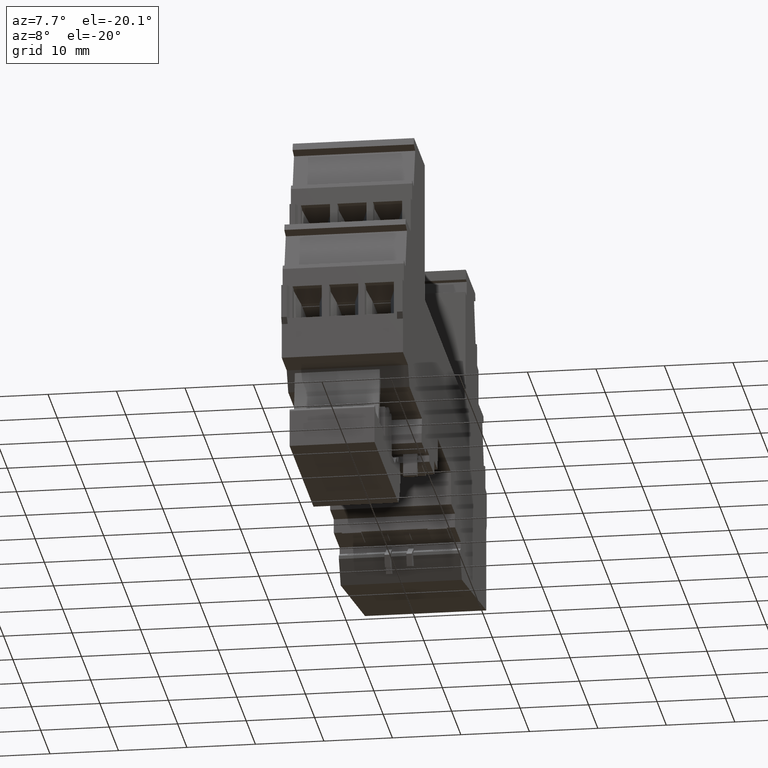
[diagram: clean part render]
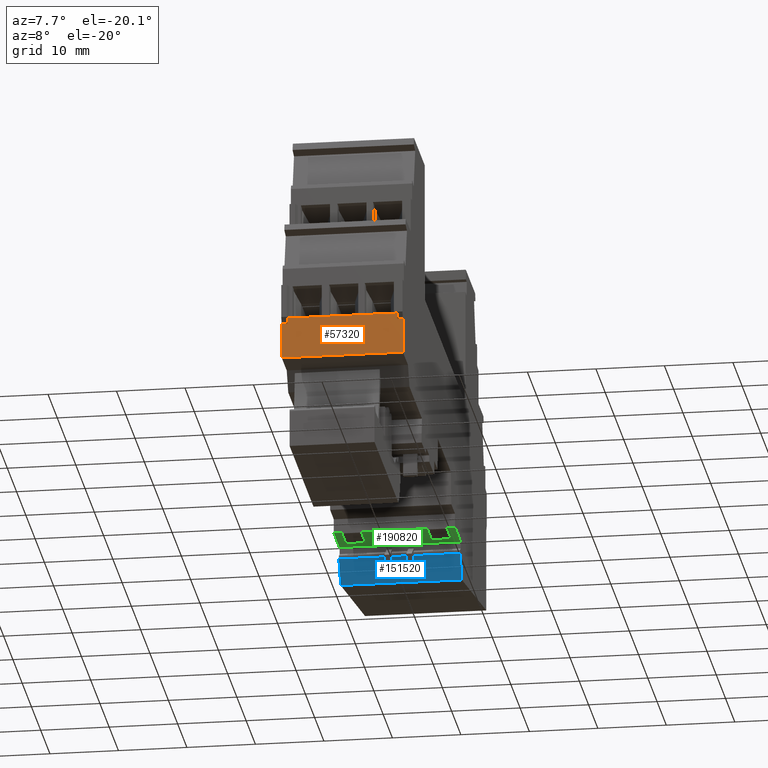
[diagram: same view with three faces highlighted in distinct colors, each labeled with its STEP entity id]
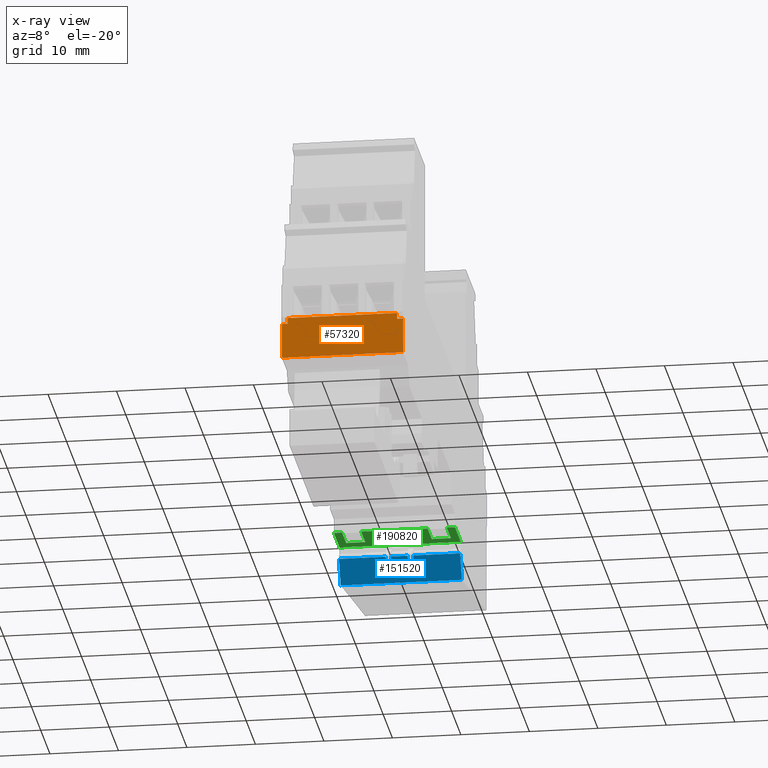
[diagram: x-ray of the same camera — body ghosted, the three highlighted faces saturated]
A machine part, auxiliary view with three faces highlighted in distinct colors.
The next image is the same camera in x-ray (body ghosted, the three faces saturated) — at least one of them is partly hidden behind the body in this view.
Their STEP definitions:

[orange] entity #57320 — the highlighted planar face has unit normal (0, 1, 0).
#4040=CARTESIAN_POINT('',(73.1530202788275,34.5453465791656,
-0.938341445953474));
#4050=VERTEX_POINT('',#4040);
#4080=CARTESIAN_POINT('',(73.1530202788275,44.0424286058733,
-0.938341446370977));
#4090=DIRECTION('',(-2.57771256903652E-26,-1.,4.39608926050624E-11));
#4100=VECTOR('',#4090,1.);
#4110=LINE('',#4080,#4100);
#4120=CARTESIAN_POINT('',(73.1530202788275,39.7194125656179,
-0.938341446180932));
#4130=VERTEX_POINT('',#4120);
#4140=EDGE_CURVE('',#4130,#4050,#4110,.T.);
#10720=CARTESIAN_POINT('',(73.1530202788299,39.7194125648368,
-18.6383414426156));
#10730=VERTEX_POINT('',#10720);
#10760=CARTESIAN_POINT('',(73.1530202788298,44.0424286051024,
-18.6383414428057));
#10770=DIRECTION('',(-2.57771256903652E-26,-1.,4.39608926050624E-11));
#10780=VECTOR('',#10770,1.);
#10790=LINE('',#10760,#10780);
#10800=CARTESIAN_POINT('',(73.1530202788298,34.5453465783947,
-18.6383414423882));
#10810=VERTEX_POINT('',#10800);
#10820=EDGE_CURVE('',#10730,#10810,#10790,.T.);
#56520=CARTESIAN_POINT('',(73.1530202788297,40.6109036446236,
-17.7686391421218));
#56530=VERTEX_POINT('',#56520);
#56560=CARTESIAN_POINT('',(73.1530202788297,44.0424286051403,
-17.7686391422698));
#56570=DIRECTION('',(8.18764599704612E-26,-1.,4.31440134525717E-11));
#56580=VECTOR('',#56570,1.);
#56590=LINE('',#56560,#56580);
#56600=CARTESIAN_POINT('',(73.1530202788297,39.7194125648745,
-17.7686391420833));
#56610=VERTEX_POINT('',#56600);
#56620=EDGE_CURVE('',#56530,#56610,#56590,.T.);
#56880=CARTESIAN_POINT('',(73.1530202788275,39.9461199958614,
-0.838339044167199));
#56890=DIRECTION('',(1.,5.76916867190308E-24,1.31820478495376E-13));
#56900=DIRECTION('',(-8.18926876413863E-26,1.,-4.31441005917845E-11));
#56910=AXIS2_PLACEMENT_3D('',#56880,#56890,#56900);
#56920=PLANE('',#56910);
#56930=CARTESIAN_POINT('',(73.1530202788275,39.719412565604,
-0.938341440173788));
#56940=DIRECTION('',(-1.31820478495376E-13,4.33491768540999E-11,1.));
#56950=VECTOR('',#56940,1.);
#56960=LINE('',#56930,#56950);
#56970=EDGE_CURVE('',#10730,#56610,#56960,.T.);
#56980=ORIENTED_EDGE('',*,*,#56970,.F.);
#56990=ORIENTED_EDGE('',*,*,#56620,.T.);
#57000=CARTESIAN_POINT('',(73.1530202788275,40.6109036453633,
-0.938341440212614));
#57010=DIRECTION('',(-1.31820478495376E-13,4.39516860598377E-11,1.));
#57020=VECTOR('',#57010,1.);
#57030=LINE('',#57000,#57020);
#57040=CARTESIAN_POINT('',(73.1530202788276,40.6109036453251,
-1.80804374675295));
#57050=VERTEX_POINT('',#57040);
#57060=EDGE_CURVE('',#56530,#57050,#57030,.T.);
#57070=ORIENTED_EDGE('',*,*,#57060,.F.);
#57080=CARTESIAN_POINT('',(73.1530202788276,44.0424286058354,
-1.80804374690661));
#57090=DIRECTION('',(-1.33532579142067E-25,-1.,4.47777717575531E-11));
#57100=VECTOR('',#57090,1.);
#57110=LINE('',#57080,#57100);
#57120=CARTESIAN_POINT('',(73.1530202788276,39.7194125655787,
-1.80804374671304));
#57130=VERTEX_POINT('',#57120);
#57140=EDGE_CURVE('',#57050,#57130,#57110,.T.);
#57150=ORIENTED_EDGE('',*,*,#57140,.F.);
#57160=CARTESIAN_POINT('',(73.1530202788269,39.7194125648259,
-18.6383414486228));
#57170=DIRECTION('',(-1.3182048241894E-13,-4.45726083560248E-11,-1.));
#57180=VECTOR('',#57170,1.);
#57190=LINE('',#57160,#57180);
#57200=EDGE_CURVE('',#4130,#57130,#57190,.T.);
#57210=ORIENTED_EDGE('',*,*,#57200,.T.);
#57220=ORIENTED_EDGE('',*,*,#4140,.F.);
#57230=CARTESIAN_POINT('',(73.1530202788275,34.5453465791656,
-0.938341439948443));
#57240=DIRECTION('',(-1.31820478495376E-13,4.35524965984122E-11,1.));
#57250=VECTOR('',#57240,1.);
#57260=LINE('',#57230,#57250);
#57270=EDGE_CURVE('',#10810,#4050,#57260,.T.);
#57280=ORIENTED_EDGE('',*,*,#57270,.T.);
#57290=ORIENTED_EDGE('',*,*,#10820,.T.);
#57300=EDGE_LOOP('',(#57290,#57280,#57220,#57210,#57150,#57070,#56990,
#56980));
#57310=FACE_OUTER_BOUND('',#57300,.T.);
#57320=ADVANCED_FACE('',(#57310),#56920,.F.);

[blue] entity #151520 — the highlighted planar face has unit normal (-0, 0.8642, 0.5032).
#2280=CARTESIAN_POINT('',(136.83368340126,22.5515031436857,
-0.938341445417819));
#2290=VERTEX_POINT('',#2280);
#2320=CARTESIAN_POINT('',(124.320669813202,44.0424286058733,
-0.938341446364232));
#2330=DIRECTION('',(-0.503170012398067,0.86418744414816,
-3.80568264323575E-11));
#2340=VECTOR('',#2330,1.);
#2350=LINE('',#2320,#2340);
#2360=CARTESIAN_POINT('',(134.874971798065,25.9155628699821,
-0.938341445565966));
#2370=VERTEX_POINT('',#2360);
#2380=EDGE_CURVE('',#2290,#2370,#2350,.T.);
#12480=CARTESIAN_POINT('',(134.874971797287,25.9155628692112,
-18.6383414420169));
#12490=VERTEX_POINT('',#12480);
#12520=CARTESIAN_POINT('',(124.320669812424,44.0424286051024,
-18.6383414428124));
#12530=DIRECTION('',(-0.503170012398067,0.86418744414816,
-3.7924210292066E-11));
#12540=VECTOR('',#12530,1.);
#12550=LINE('',#12520,#12540);
#12560=CARTESIAN_POINT('',(136.833683400482,22.5515031429149,
-18.6383414418693));
#12570=VERTEX_POINT('',#12560);
#12580=EDGE_CURVE('',#12570,#12490,#12550,.T.);
#51980=CARTESIAN_POINT('',(124.320669812725,44.0424286054007,
-11.788341441492));
#51990=DIRECTION('',(-0.503170012398067,0.86418744414816,
-2.53974528829179E-11));
#52000=VECTOR('',#51990,1.);
#52010=LINE('',#51980,#52000);
#52020=CARTESIAN_POINT('',(136.155884999306,23.7156123981116,
-11.7883414408946));
#52030=VERTEX_POINT('',#52020);
#52040=CARTESIAN_POINT('',(134.874971797678,25.9155628693557,
-11.7883414409592));
#52050=VERTEX_POINT('',#52040);
#52060=EDGE_CURVE('',#52030,#52050,#52010,.T.);
#53290=CARTESIAN_POINT('',(136.155884999338,23.7156123981533,
-10.9883414408946));
#53300=VERTEX_POINT('',#53290);
#53760=CARTESIAN_POINT('',(134.874971797623,25.9155628695444,
-10.9883414409592));
#53770=VERTEX_POINT('',#53760);
#53800=CARTESIAN_POINT('',(124.320669812761,44.0424286054355,
-10.988341441492));
#53810=DIRECTION('',(-0.503170012398067,0.86418744414816,
-2.53974528829179E-11));
#53820=VECTOR('',#53810,1.);
#53830=LINE('',#53800,#53820);
#53840=EDGE_CURVE('',#53300,#53770,#53830,.T.);
#54090=CARTESIAN_POINT('',(136.15588499975,23.7156123986413,
-0.938341442246461));
#54100=DIRECTION('',(4.01599233932714E-11,5.00810846456753E-11,1.));
#54110=VECTOR('',#54100,1.);
#54120=LINE('',#54090,#54110);
#54130=EDGE_CURVE('',#52030,#53300,#54120,.T.);
#55850=CARTESIAN_POINT('',(134.874971798072,25.9155628689522,
-0.938341442285966));
#55860=DIRECTION('',(-4.44917982764124E-11,3.24531473470968E-11,-1.));
#55870=VECTOR('',#55860,1.);
#55880=LINE('',#55850,#55870);
#55890=CARTESIAN_POINT('',(134.87497179747,25.915562869392,
-14.4883414415489));
#55900=VERTEX_POINT('',#55890);
#55910=EDGE_CURVE('',#52050,#55900,#55880,.T.);
#55930=CARTESIAN_POINT('',(134.874971798065,25.9155628699821,
-0.938341442285966));
#55940=DIRECTION('',(4.39611701608816E-11,4.35524965984235E-11,1.));
#55950=VECTOR('',#55940,1.);
#55960=LINE('',#55930,#55950);
#55970=EDGE_CURVE('',#12490,#55900,#55960,.T.);
#150820=CARTESIAN_POINT('',(136.833683401338,22.5515031437628,
0.831660963895706));
#150830=DIRECTION('',(0.86418744414816,0.503170012398067,
-5.99050015364902E-11));
#150840=DIRECTION('',(-0.503170012398067,0.86418744414816,
-1.55175781867787E-11));
#150850=AXIS2_PLACEMENT_3D('',#150820,#150830,#150840);
#150860=PLANE('',#150850);
#150870=CARTESIAN_POINT('',(136.833683400725,22.5515031435875,
-0.938341442225559));
#150880=DIRECTION('',(4.45906887221336E-12,3.63025043285843E-11,1.));
#150890=VECTOR('',#150880,1.);
#150900=LINE('',#150870,#150890);
#150910=CARTESIAN_POINT('',(136.833683400651,22.5515031429867,
-17.488341444754));
#150920=VERTEX_POINT('',#150910);
#150930=CARTESIAN_POINT('',(136.833683400695,22.5515031433424,
-7.68834144240304));
#150940=VERTEX_POINT('',#150930);
#150950=EDGE_CURVE('',#150920,#150940,#150900,.T.);
#150960=ORIENTED_EDGE('',*,*,#150950,.T.);
#150970=CARTESIAN_POINT('',(136.83368340126,22.5515031436857,
-0.938341442225559));
#150980=DIRECTION('',(4.39611701608816E-11,4.35524965984235E-11,1.));
#150990=VECTOR('',#150980,1.);
#151000=LINE('',#150970,#150990);
#151010=EDGE_CURVE('',#12570,#150920,#151000,.T.);
#151020=ORIENTED_EDGE('',*,*,#151010,.T.);
#151030=ORIENTED_EDGE('',*,*,#12580,.F.);
#151040=ORIENTED_EDGE('',*,*,#55970,.F.);
#151050=ORIENTED_EDGE('',*,*,#55910,.T.);
#151060=ORIENTED_EDGE('',*,*,#52060,.T.);
#151070=ORIENTED_EDGE('',*,*,#54130,.F.);
#151080=ORIENTED_EDGE('',*,*,#53840,.F.);
#151090=CARTESIAN_POINT('',(134.874971798065,25.9155628699821,
-0.938341442285966));
#151100=DIRECTION('',(-4.39611701608816E-11,-4.35524965984235E-11,-1.));
#151110=VECTOR('',#151100,1.);
#151120=LINE('',#151090,#151110);
#151130=CARTESIAN_POINT('',(134.874971797925,25.9155628693127,
-8.58834144453143));
#151140=VERTEX_POINT('',#151130);
#151150=EDGE_CURVE('',#151140,#53770,#151120,.T.);
#151160=ORIENTED_EDGE('',*,*,#151150,.T.);
#151170=CARTESIAN_POINT('',(124.320669812866,44.0424286055401,
-8.58834144506416));
#151180=DIRECTION('',(-0.503170012398067,0.86418744414816,
-2.53974528829179E-11));
#151190=VECTOR('',#151180,1.);
#151200=LINE('',#151170,#151190);
#151210=CARTESIAN_POINT('',(135.644619009668,24.593704570083,
-8.58834144449259));
#151220=VERTEX_POINT('',#151210);
#151230=EDGE_CURVE('',#151220,#151140,#151200,.T.);
#151240=ORIENTED_EDGE('',*,*,#151230,.T.);
#151250=CARTESIAN_POINT('',(135.644619009975,24.5937045704661,
-0.938341442262228));
#151260=DIRECTION('',(4.01599233932714E-11,5.00810846456753E-11,1.));
#151270=VECTOR('',#151260,1.);
#151280=LINE('',#151250,#151270);
#151290=CARTESIAN_POINT('',(135.6446190097,24.593704570123,
-7.78834144449259));
#151300=VERTEX_POINT('',#151290);
#151310=EDGE_CURVE('',#151220,#151300,#151280,.T.);
#151320=ORIENTED_EDGE('',*,*,#151310,.F.);
#151330=CARTESIAN_POINT('',(124.320669812901,44.0424286055749,
-7.78834144506416));
#151340=DIRECTION('',(0.503170012398067,-0.86418744414816,
2.53974528829179E-11));
#151350=VECTOR('',#151340,1.);
#151360=LINE('',#151330,#151350);
#151370=CARTESIAN_POINT('',(134.874971797764,25.9155628696838,
-7.78834144453143));
#151380=VERTEX_POINT('',#151370);
#151390=EDGE_CURVE('',#151380,#151300,#151360,.T.);
#151400=ORIENTED_EDGE('',*,*,#151390,.T.);
#151410=CARTESIAN_POINT('',(134.874971798065,25.9155628699821,
-0.938341442285966));
#151420=DIRECTION('',(4.39611701608816E-11,4.35524965984235E-11,1.));
#151430=VECTOR('',#151420,1.);
#151440=LINE('',#151410,#151430);
#151450=EDGE_CURVE('',#151380,#2370,#151440,.T.);
#151460=ORIENTED_EDGE('',*,*,#151450,.F.);
#151470=ORIENTED_EDGE('',*,*,#2380,.T.);
#151480=EDGE_CURVE('',#150940,#2290,#151000,.T.);
#151490=ORIENTED_EDGE('',*,*,#151480,.T.);
#151500=EDGE_LOOP('',(#151490,#151470,#151460,#151400,#151320,#151240,
#151160,#151080,#151070,#151060,#151050,#151040,#151030,#151020,#150960)
);
#151510=FACE_OUTER_BOUND('',#151500,.T.);
#151520=ADVANCED_FACE('',(#151510),#150860,.F.);

[green] entity #190820 — the highlighted planar face has unit normal (-0, -0, 1).
#2600=CARTESIAN_POINT('',(135.626055204502,27.9453465791736,
-0.938341445655098));
#2610=VERTEX_POINT('',#2600);
#2640=CARTESIAN_POINT('',(150.854165360675,27.9453465791736,
-0.938341445653091));
#2650=DIRECTION('',(-1.,1.22365731730191E-23,-1.31820478495376E-13));
#2660=VECTOR('',#2650,1.);
#2670=LINE('',#2640,#2660);
#2680=CARTESIAN_POINT('',(129.403020257824,27.9453465791808,
-0.93834144565592));
#2690=VERTEX_POINT('',#2680);
#2700=EDGE_CURVE('',#2610,#2690,#2670,.T.);
#12160=CARTESIAN_POINT('',(129.403020241703,27.9453465784027,
-18.6383414421054));
#12170=VERTEX_POINT('',#12160);
#12200=CARTESIAN_POINT('',(150.854165359897,27.9453465784027,
-18.6383414421083));
#12210=DIRECTION('',(-1.,2.37187952264449E-23,1.3182048241894E-13));
#12220=VECTOR('',#12210,1.);
#12230=LINE('',#12200,#12220);
#12240=CARTESIAN_POINT('',(135.626055203724,27.9453465784027,
-18.6383414421063));
#12250=VERTEX_POINT('',#12240);
#12260=EDGE_CURVE('',#12250,#12170,#12230,.T.);
#55010=CARTESIAN_POINT('',(135.512263206619,27.945346578701,
-11.7883414410695));
#55020=VERTEX_POINT('',#55010);
#55050=CARTESIAN_POINT('',(135.512263206928,27.9453465791736,
-0.938341442402383));
#55060=DIRECTION('',(-2.81931253586295E-11,-4.35524965984235E-11,-1.));
#55070=VECTOR('',#55060,1.);
#55080=LINE('',#55050,#55070);
#55090=CARTESIAN_POINT('',(135.512263206641,27.9453465787359,
-10.9883414410695));
#55100=VERTEX_POINT('',#55090);
#55110=EDGE_CURVE('',#55100,#55020,#55080,.T.);
#55310=CARTESIAN_POINT('',(150.854165360233,27.9453465787359,
-10.9883414414965));
#55320=DIRECTION('',(-1.,1.23017733510504E-21,2.78330691847095E-11));
#55330=VECTOR('',#55320,1.);
#55340=LINE('',#55310,#55330);
#55350=CARTESIAN_POINT('',(135.626055204061,27.9453465787359,
-10.9883414410727));
#55360=VERTEX_POINT('',#55350);
#55370=EDGE_CURVE('',#55360,#55100,#55340,.T.);
#55590=CARTESIAN_POINT('',(135.626055204025,27.945346578701,
-11.7883414410727));
#55600=VERTEX_POINT('',#55590);
#55630=CARTESIAN_POINT('',(150.854165360198,27.945346578701,
-11.7883414414965));
#55640=DIRECTION('',(-1.,1.23017733510504E-21,2.78330691847095E-11));
#55650=VECTOR('',#55640,1.);
#55660=LINE('',#55630,#55650);
#55670=EDGE_CURVE('',#55600,#55020,#55660,.T.);
#151790=CARTESIAN_POINT('',(135.5760552047,27.9453465791213,
-2.13834144287356));
#151800=VERTEX_POINT('',#151790);
#151830=CARTESIAN_POINT('',(150.854165360622,27.9453465791213,
-2.13834144283593));
#151840=DIRECTION('',(1.,8.92914552590615E-23,2.46298485164765E-12));
#151850=VECTOR('',#151840,1.);
#151860=LINE('',#151830,#151850);
#151870=CARTESIAN_POINT('',(135.62605520445,27.9453465791213,
-2.13834144287344));
#151880=VERTEX_POINT('',#151870);
#151890=EDGE_CURVE('',#151800,#151880,#151860,.T.);
#154570=CARTESIAN_POINT('',(135.512263206949,27.9453465788753,
-7.78834144464172));
#154580=VERTEX_POINT('',#154570);
#154610=CARTESIAN_POINT('',(150.854165360374,27.9453465788753,
-7.78834144506873));
#154620=DIRECTION('',(1.,-1.23017733510504E-21,-2.78330691847095E-11));
#154630=VECTOR('',#154620,1.);
#154640=LINE('',#154610,#154630);
#154650=CARTESIAN_POINT('',(135.626055204201,27.9453465788753,
-7.78834144464489));
#154660=VERTEX_POINT('',#154650);
#154670=EDGE_CURVE('',#154580,#154660,#154640,.T.);
#154910=CARTESIAN_POINT('',(135.626055204502,27.9453465791736,
-0.938341442407385));
#154920=DIRECTION('',(-4.39611701608816E-11,-4.35524965984235E-11,-1.));
#154930=VECTOR('',#154920,1.);
#154940=LINE('',#154910,#154930);
#154950=CARTESIAN_POINT('',(135.626055204326,27.9453465789994,
-4.93834144287265));
#154960=VERTEX_POINT('',#154950);
#154970=EDGE_CURVE('',#154960,#154660,#154940,.T.);
#155340=CARTESIAN_POINT('',(135.512263206926,27.9453465788404,
-8.58834144464172));
#155350=VERTEX_POINT('',#155340);
#155380=CARTESIAN_POINT('',(135.512263207142,27.9453465791736,
-0.938341442402383));
#155390=DIRECTION('',(-2.81931253586296E-11,-4.35524965984235E-11,-1.));
#155400=VECTOR('',#155390,1.);
#155410=LINE('',#155380,#155400);
#155420=EDGE_CURVE('',#154580,#155350,#155410,.T.);
#155640=CARTESIAN_POINT('',(135.626055204166,27.9453465788404,
-8.58834144464489));
#155650=VERTEX_POINT('',#155640);
#155680=CARTESIAN_POINT('',(150.854165360338,27.9453465788404,
-8.58834144506873));
#155690=DIRECTION('',(-1.,1.23017733510504E-21,2.78330691847095E-11));
#155700=VECTOR('',#155690,1.);
#155710=LINE('',#155680,#155700);
#155720=EDGE_CURVE('',#155650,#155350,#155710,.T.);
#157220=CARTESIAN_POINT('',(135.626055204502,27.9453465791736,
-0.938341442407385));
#157230=DIRECTION('',(-4.39611701608816E-11,-4.35524965984235E-11,-1.));
#157240=VECTOR('',#157230,1.);
#157250=LINE('',#157220,#157240);
#157260=EDGE_CURVE('',#2610,#151880,#157250,.T.);
#157890=CARTESIAN_POINT('',(133.714405434432,27.9453465787359,
-10.9883414410195));
#157900=VERTEX_POINT('',#157890);
#158070=CARTESIAN_POINT('',(130.687705008347,27.9453465787359,
-10.9883414409352));
#158080=VERTEX_POINT('',#158070);
#158110=CARTESIAN_POINT('',(150.854165360233,27.9453465787359,
-10.9883414414965));
#158120=DIRECTION('',(-1.,1.23017733510504E-21,2.78330691847095E-11));
#158130=VECTOR('',#158120,1.);
#158140=LINE('',#158110,#158130);
#158150=EDGE_CURVE('',#157900,#158080,#158140,.T.);
#158360=CARTESIAN_POINT('',(133.71440543441,27.945346578701,
-11.7883414410195));
#158370=VERTEX_POINT('',#158360);
#158490=CARTESIAN_POINT('',(133.714405434649,27.9453465791736,
-0.938341442323347));
#158500=DIRECTION('',(2.42962560191724E-11,4.35524965984235E-11,1.));
#158510=VECTOR('',#158500,1.);
#158520=LINE('',#158490,#158510);
#158530=EDGE_CURVE('',#158370,#157900,#158520,.T.);
#158700=CARTESIAN_POINT('',(150.854165360198,27.945346578701,
-11.7883414414965));
#158710=DIRECTION('',(-1.,1.23017733510504E-21,2.78330691847095E-11));
#158720=VECTOR('',#158710,1.);
#158730=LINE('',#158700,#158720);
#158740=CARTESIAN_POINT('',(130.687705008325,27.945346578701,
-11.7883414409352));
#158750=VERTEX_POINT('',#158740);
#158760=EDGE_CURVE('',#158370,#158750,#158730,.T.);
#159090=CARTESIAN_POINT('',(130.687705008689,27.9453465791736,
-0.938341442190289));
#159100=DIRECTION('',(-3.13698823502435E-11,-4.35524965984235E-11,-1.));
#159110=VECTOR('',#159100,1.);
#159120=LINE('',#159090,#159110);
#159130=EDGE_CURVE('',#158080,#158750,#159120,.T.);
#159600=CARTESIAN_POINT('',(133.714405434483,27.9453465788753,
-7.78834144459168));
#159610=VERTEX_POINT('',#159600);
#159780=CARTESIAN_POINT('',(130.68770500845,27.9453465788753,
-7.78834144450745));
#159790=VERTEX_POINT('',#159780);
#159820=CARTESIAN_POINT('',(150.854165360374,27.9453465788753,
-7.78834144506873));
#159830=DIRECTION('',(1.,-1.23017733510504E-21,-2.78330691847095E-11));
#159840=VECTOR('',#159830,1.);
#159850=LINE('',#159820,#159840);
#159860=EDGE_CURVE('',#159790,#159610,#159850,.T.);
#160150=CARTESIAN_POINT('',(130.687705008425,27.9453465788404,
-8.58834144450744));
#160160=VERTEX_POINT('',#160150);
#160190=CARTESIAN_POINT('',(130.687705008665,27.9453465791736,
-0.938341442190289));
#160200=DIRECTION('',(3.13698823502435E-11,4.35524965984235E-11,1.));
#160210=VECTOR('',#160200,1.);
#160220=LINE('',#160190,#160210);
#160230=EDGE_CURVE('',#160160,#159790,#160220,.T.);
#160410=CARTESIAN_POINT('',(150.854165360338,27.9453465788404,
-8.58834144149653));
#160420=DIRECTION('',(-1.,1.23017733510504E-21,2.78330691847095E-11));
#160430=VECTOR('',#160420,1.);
#160440=LINE('',#160410,#160430);
#160450=CARTESIAN_POINT('',(133.714405434464,27.9453465788404,
-8.58834144459168));
#160460=VERTEX_POINT('',#160450);
#160470=EDGE_CURVE('',#160460,#160160,#160440,.T.);
#160790=CARTESIAN_POINT('',(133.714405434649,27.9453465791736,
-0.938341442323347));
#160800=DIRECTION('',(-2.42962560191724E-11,-4.35524965984235E-11,-1.));
#160810=VECTOR('',#160800,1.);
#160820=LINE('',#160790,#160810);
#160830=EDGE_CURVE('',#159610,#160460,#160820,.T.);
#167780=CARTESIAN_POINT('',(129.403020241705,27.945346579128,
-2.13834144288838));
#167790=VERTEX_POINT('',#167780);
#167800=CARTESIAN_POINT('',(129.403020241705,27.9453465789994,
-4.93834144288838));
#167810=VERTEX_POINT('',#167800);
#167840=CARTESIAN_POINT('',(129.403020241707,27.9453465797055,
11.2750000016927));
#167850=DIRECTION('',(-1.3182048241894E-13,-4.35524965984235E-11,-1.));
#167860=VECTOR('',#167850,1.);
#167870=LINE('',#167840,#167860);
#167880=CARTESIAN_POINT('',(129.403020241704,27.9453465785769,
-14.6383414428887));
#167890=VERTEX_POINT('',#167880);
#167900=EDGE_CURVE('',#167810,#167890,#167870,.T.);
#167920=CARTESIAN_POINT('',(129.403020241703,27.945346578455,
-17.4383414428887));
#167930=VERTEX_POINT('',#167920);
#167960=EDGE_CURVE('',#167930,#12170,#167870,.T.);
#168010=EDGE_CURVE('',#2690,#167790,#167870,.T.);
#180150=CARTESIAN_POINT('',(150.854165359949,27.945346578455,
-17.4383414428359));
#180160=DIRECTION('',(-1.,-8.92914552684582E-23,-2.46298485186341E-12));
#180170=VECTOR('',#180160,1.);
#180180=LINE('',#180150,#180170);
#180190=CARTESIAN_POINT('',(133.875174927706,27.945346578455,
-17.4383414428777));
#180200=VERTEX_POINT('',#180190);
#180210=EDGE_CURVE('',#180200,#167930,#180180,.T.);
#180850=CARTESIAN_POINT('',(150.854165360072,27.9453465785769,
-14.6383414428359));
#180860=DIRECTION('',(-1.,-8.92914552684582E-23,-2.46298485186341E-12));
#180870=VECTOR('',#180860,1.);
#180880=LINE('',#180850,#180870);
#180890=CARTESIAN_POINT('',(133.875174927699,27.9453465785769,
-14.6383414428777));
#180900=VERTEX_POINT('',#180890);
#180910=EDGE_CURVE('',#180900,#167890,#180880,.T.);
#181200=CARTESIAN_POINT('',(133.875174927478,27.9453465791736,
-0.938341442330414));
#181210=DIRECTION('',(-1.303021961703E-11,4.35524965984235E-11,1.));
#181220=VECTOR('',#181210,1.);
#181230=LINE('',#181200,#181220);
#181240=EDGE_CURVE('',#180200,#180900,#181230,.T.);
#181410=CARTESIAN_POINT('',(150.854165360499,27.9453465789994,
-4.93834144283555));
#181420=DIRECTION('',(-1.,-8.92914552684582E-23,-2.46298485186341E-12));
#181430=VECTOR('',#181420,1.);
#181440=LINE('',#181410,#181430);
#181450=CARTESIAN_POINT('',(133.875174927675,27.9453465789994,
-4.93834144287736));
#181460=VERTEX_POINT('',#181450);
#181470=EDGE_CURVE('',#181460,#167810,#181440,.T.);
#182160=CARTESIAN_POINT('',(150.854165360622,27.9453465791213,
-2.13834144283554));
#182170=DIRECTION('',(-1.,-8.92914552684582E-23,-2.46298485186341E-12));
#182180=VECTOR('',#182170,1.);
#182190=LINE('',#182160,#182180);
#182200=CARTESIAN_POINT('',(133.875174927668,27.9453465791213,
-2.13834144287736));
#182210=VERTEX_POINT('',#182200);
#182220=EDGE_CURVE('',#182210,#167790,#182190,.T.);
#182560=CARTESIAN_POINT('',(133.875174927478,27.9453465791736,
-0.938341442330414));
#182570=DIRECTION('',(-1.303021961703E-11,4.35524965984235E-11,1.));
#182580=VECTOR('',#182570,1.);
#182590=LINE('',#182560,#182580);
#182600=EDGE_CURVE('',#181460,#182210,#182590,.T.);
#189930=CARTESIAN_POINT('',(132.468149310666,27.9453465783256,
-20.4083438504186));
#189940=DIRECTION('',(1.79776841142911E-23,1.,-4.35524965984235E-11));
#189950=DIRECTION('',(1.,-1.93259639800881E-21,-4.39611701608816E-11));
#189960=AXIS2_PLACEMENT_3D('',#189930,#189940,#189950);
#189970=PLANE('',#189960);
#189980=ORIENTED_EDGE('',*,*,#160230,.T.);
#189990=ORIENTED_EDGE('',*,*,#160470,.T.);
#190000=ORIENTED_EDGE('',*,*,#160830,.T.);
#190010=ORIENTED_EDGE('',*,*,#159860,.T.);
#190020=EDGE_LOOP('',(#190010,#190000,#189990,#189980));
#190030=FACE_BOUND('',#190020,.T.);
#190040=ORIENTED_EDGE('',*,*,#159130,.F.);
#190050=ORIENTED_EDGE('',*,*,#158760,.T.);
#190060=ORIENTED_EDGE('',*,*,#158530,.F.);
#190070=ORIENTED_EDGE('',*,*,#158150,.F.);
#190080=EDGE_LOOP('',(#190070,#190060,#190050,#190040));
#190090=FACE_BOUND('',#190080,.T.);
#190100=ORIENTED_EDGE('',*,*,#2700,.T.);
#190110=ORIENTED_EDGE('',*,*,#157260,.F.);
#190120=ORIENTED_EDGE('',*,*,#151890,.T.);
#190130=CARTESIAN_POINT('',(135.576055204697,27.9453465791736,
-0.938341442405187));
#190140=DIRECTION('',(2.46298485165434E-12,-4.35524965984235E-11,-1.));
#190150=VECTOR('',#190140,1.);
#190160=LINE('',#190130,#190150);
#190170=CARTESIAN_POINT('',(135.576055204707,27.9453465789994,
-4.93834144287278));
#190180=VERTEX_POINT('',#190170);
#190190=EDGE_CURVE('',#151800,#190180,#190160,.T.);
#190200=ORIENTED_EDGE('',*,*,#190190,.F.);
#190210=CARTESIAN_POINT('',(150.854165360499,27.9453465789994,
-4.93834144283515));
#190220=DIRECTION('',(-1.,-8.929145525924E-23,-2.46298485165176E-12));
#190230=VECTOR('',#190220,1.);
#190240=LINE('',#190210,#190230);
#190250=EDGE_CURVE('',#154960,#190180,#190240,.T.);
#190260=ORIENTED_EDGE('',*,*,#190250,.T.);
#190270=ORIENTED_EDGE('',*,*,#154970,.F.);
#190280=ORIENTED_EDGE('',*,*,#154670,.T.);
#190290=ORIENTED_EDGE('',*,*,#155420,.F.);
#190300=ORIENTED_EDGE('',*,*,#155720,.T.);
#190310=CARTESIAN_POINT('',(135.626055204502,27.9453465791736,
-0.938341442407385));
#190320=DIRECTION('',(-4.39611701608816E-11,-4.35524965984235E-11,-1.));
#190330=VECTOR('',#190320,1.);
#190340=LINE('',#190310,#190330);
#190350=EDGE_CURVE('',#155650,#55360,#190340,.T.);
#190360=ORIENTED_EDGE('',*,*,#190350,.F.);
#190370=ORIENTED_EDGE('',*,*,#55370,.F.);
#190380=ORIENTED_EDGE('',*,*,#55110,.F.);
#190390=ORIENTED_EDGE('',*,*,#55670,.T.);
#190400=CARTESIAN_POINT('',(135.6260552039,27.9453465785769,
-14.6383414428674));
#190410=VERTEX_POINT('',#190400);
#190420=EDGE_CURVE('',#55600,#190410,#190340,.T.);
#190430=ORIENTED_EDGE('',*,*,#190420,.F.);
#190440=CARTESIAN_POINT('',(150.854165360072,27.9453465785769,
-14.6383414428299));
#190450=DIRECTION('',(-1.,-8.92914552684582E-23,-2.46298485186341E-12));
#190460=VECTOR('',#190450,1.);
#190470=LINE('',#190440,#190460);
#190480=CARTESIAN_POINT('',(135.576055204731,27.9453465785769,
-14.6383414428675));
#190490=VERTEX_POINT('',#190480);
#190500=EDGE_CURVE('',#190410,#190490,#190470,.T.);
#190510=ORIENTED_EDGE('',*,*,#190500,.F.);
#190520=CARTESIAN_POINT('',(135.576055204697,27.9453465791736,
-0.938341442405187));
#190530=DIRECTION('',(2.46298485186599E-12,-4.35524965984235E-11,-1.));
#190540=VECTOR('',#190530,1.);
#190550=LINE('',#190520,#190540);
#190560=CARTESIAN_POINT('',(135.576055204738,27.945346578455,
-17.4383414428675));
#190570=VERTEX_POINT('',#190560);
#190580=EDGE_CURVE('',#190490,#190570,#190550,.T.);
#190590=ORIENTED_EDGE('',*,*,#190580,.F.);
#190600=CARTESIAN_POINT('',(150.854165359949,27.945346578455,
-17.4383414428299));
#190610=DIRECTION('',(-1.,-8.92914552684582E-23,-2.46298485186341E-12));
#190620=VECTOR('',#190610,1.);
#190630=LINE('',#190600,#190620);
#190640=CARTESIAN_POINT('',(135.626055203777,27.945346578455,
-17.4383414428674));
#190650=VERTEX_POINT('',#190640);
#190660=EDGE_CURVE('',#190650,#190570,#190630,.T.);
#190670=ORIENTED_EDGE('',*,*,#190660,.T.);
#190680=EDGE_CURVE('',#190650,#12250,#190340,.T.);
#190690=ORIENTED_EDGE('',*,*,#190680,.F.);
#190700=ORIENTED_EDGE('',*,*,#12260,.F.);
#190710=ORIENTED_EDGE('',*,*,#167960,.T.);
#190720=ORIENTED_EDGE('',*,*,#180210,.T.);
#190730=ORIENTED_EDGE('',*,*,#181240,.F.);
#190740=ORIENTED_EDGE('',*,*,#180910,.F.);
#190750=ORIENTED_EDGE('',*,*,#167900,.T.);
#190760=ORIENTED_EDGE('',*,*,#181470,.T.);
#190770=ORIENTED_EDGE('',*,*,#182600,.F.);
#190780=ORIENTED_EDGE('',*,*,#182220,.F.);
#190790=ORIENTED_EDGE('',*,*,#168010,.T.);
#190800=EDGE_LOOP('',(#190790,#190780,#190770,#190760,#190750,#190740,
#190730,#190720,#190710,#190700,#190690,#190670,#190590,#190510,#190430,
#190390,#190380,#190370,#190360,#190300,#190290,#190280,#190270,#190260,
#190200,#190120,#190110,#190100));
#190810=FACE_OUTER_BOUND('',#190800,.T.);
#190820=ADVANCED_FACE('',(#190030,#190090,#190810),#189970,.F.);